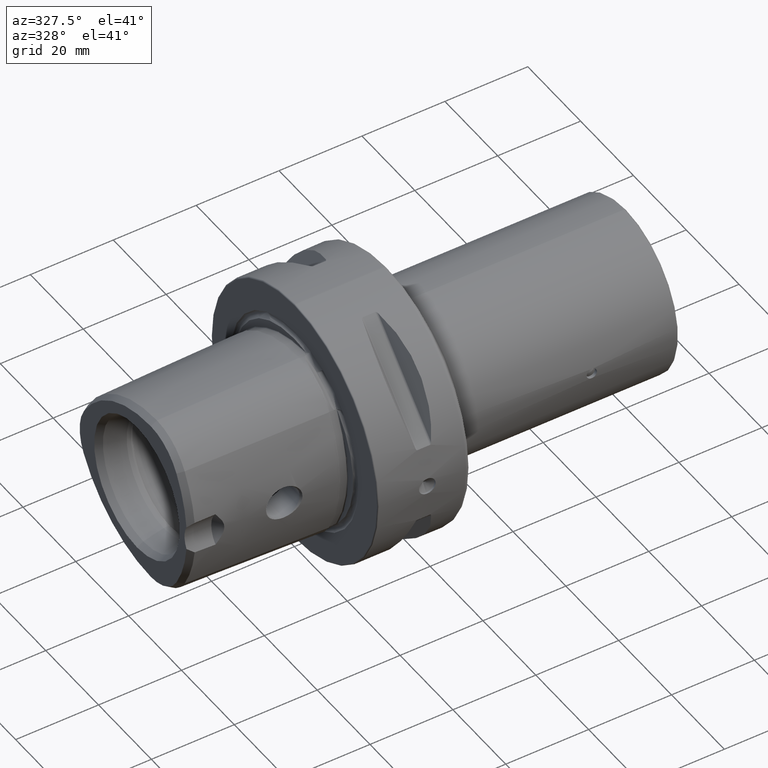
[diagram: clean part render]
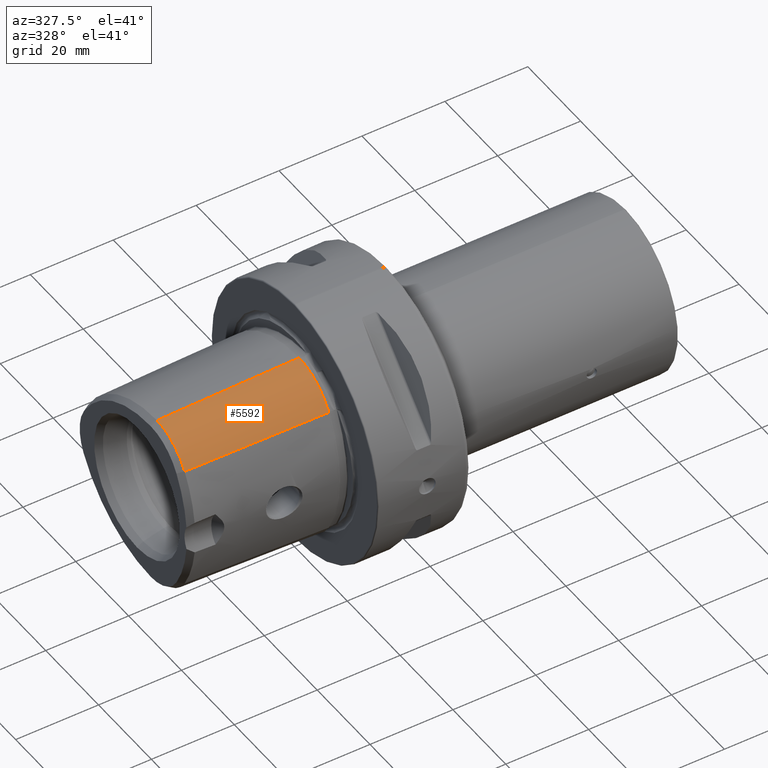
[diagram: same view with one face highlighted and labeled with its STEP entity id]
A machine part, auxiliary view. The second image highlights one B-rep face of the part: STEP entity #5592.
In plain terms, the highlighted conical surface has half-angle 1.439 deg.
Its self-contained STEP definition (entity closure, byte-faithful):
#304 = FACE_OUTER_BOUND ( 'NONE', #4364, .T. ) ;
#510 = AXIS2_PLACEMENT_3D ( 'NONE', #2099, #4286, #2183 ) ;
#669 = LINE ( 'NONE', #1083, #7002 ) ;
#930 = VERTEX_POINT ( 'NONE', #6374 ) ;
#1083 = CARTESIAN_POINT ( 'NONE',  ( -36.50000000000000000, -15.71124463838674500, 15.10405282873856300 ) ) ;
#1288 = DIRECTION ( 'NONE',  ( 0.0000000000000000000, 0.0000000000000000000, 1.000000000000000000 ) ) ;
#1705 = AXIS2_PLACEMENT_3D ( 'NONE', #5054, #4530, #1288 ) ;
#1767 = EDGE_CURVE ( 'NONE', #930, #5664, #669, .T. ) ;
#1852 = CARTESIAN_POINT ( 'NONE',  ( -36.50000000000000000, -5.224871130596426400, 21.15836339628426200 ) ) ;
#2080 = VERTEX_POINT ( 'NONE', #1852 ) ;
#2099 = CARTESIAN_POINT ( 'NONE',  ( -2.200000000000000200, -5.224871130596429000, 9.049742261192859500 ) ) ;
#2121 = DIRECTION ( 'NONE',  ( 0.9996845546799859600, -0.02175070920013002700, 0.01255777781176029400 ) ) ;
#2183 = DIRECTION ( 'NONE',  ( 0.0000000000000000000, 0.0000000000000000000, 1.000000000000000000 ) ) ;
#2332 = LINE ( 'NONE', #2689, #3934 ) ;
#2689 = CARTESIAN_POINT ( 'NONE',  ( -36.50000000000000000, -5.224871130596426400, 21.15836339628426200 ) ) ;
#2842 = EDGE_CURVE ( 'NONE', #5664, #6701, #5880, .T. ) ;
#2943 = ORIENTED_EDGE ( 'NONE', *, *, #5715, .F. ) ;
#3097 = CARTESIAN_POINT ( 'NONE',  ( -36.50000000000000000, -5.224871130596429000, 9.049742261192859500 ) ) ;
#3116 = DIRECTION ( 'NONE',  ( 0.0000000000000000000, 0.0000000000000000000, -1.000000000000000000 ) ) ;
#3470 = AXIS2_PLACEMENT_3D ( 'NONE', #3097, #6379, #3116 ) ;
#3668 = ORIENTED_EDGE ( 'NONE', *, *, #1767, .T. ) ;
#3730 = CARTESIAN_POINT ( 'NONE',  ( -2.200000000000000200, -16.45752937597907100, 15.53492052287960400 ) ) ;
#3934 = VECTOR ( 'NONE', #5443, 1000.000000000000100 ) ;
#3990 = EDGE_CURVE ( 'NONE', #930, #2080, #5296, .T. ) ;
#4286 = DIRECTION ( 'NONE',  ( -1.000000000000000000, 0.0000000000000000000, 0.0000000000000000000 ) ) ;
#4364 = EDGE_LOOP ( 'NONE', ( #3668, #5355, #2943, #5834 ) ) ;
#4530 = DIRECTION ( 'NONE',  ( -1.000000000000000000, 0.0000000000000000000, 0.0000000000000000000 ) ) ;
#5054 = CARTESIAN_POINT ( 'NONE',  ( -36.50000000000000000, -5.224871130596429000, 9.049742261192859500 ) ) ;
#5296 = CIRCLE ( 'NONE', #1705, 12.10862113509140200 ) ;
#5355 = ORIENTED_EDGE ( 'NONE', *, *, #2842, .T. ) ;
#5443 = DIRECTION ( 'NONE',  ( 0.9996845546799859600, -4.510281037539699100E-017, 0.02511555562352066000 ) ) ;
#5567 = CARTESIAN_POINT ( 'NONE',  ( -2.200000000000000200, -5.224871130596424600, 22.02009878456634000 ) ) ;
#5592 = ADVANCED_FACE ( 'NONE', ( #304 ), #6630, .T. ) ;
#5664 = VERTEX_POINT ( 'NONE', #3730 ) ;
#5715 = EDGE_CURVE ( 'NONE', #2080, #6701, #2332, .T. ) ;
#5834 = ORIENTED_EDGE ( 'NONE', *, *, #3990, .F. ) ;
#5880 = CIRCLE ( 'NONE', #510, 12.97035652337348000 ) ;
#6374 = CARTESIAN_POINT ( 'NONE',  ( -36.50000000000000000, -15.71124463838674500, 15.10405282873856300 ) ) ;
#6379 = DIRECTION ( 'NONE',  ( 1.000000000000000000, -0.0000000000000000000, -0.0000000000000000000 ) ) ;
#6630 = CONICAL_SURFACE ( 'NONE', #3470, 12.10862113509140200, 0.02511819681827823200 ) ;
#6701 = VERTEX_POINT ( 'NONE', #5567 ) ;
#7002 = VECTOR ( 'NONE', #2121, 1000.000000000000100 ) ;